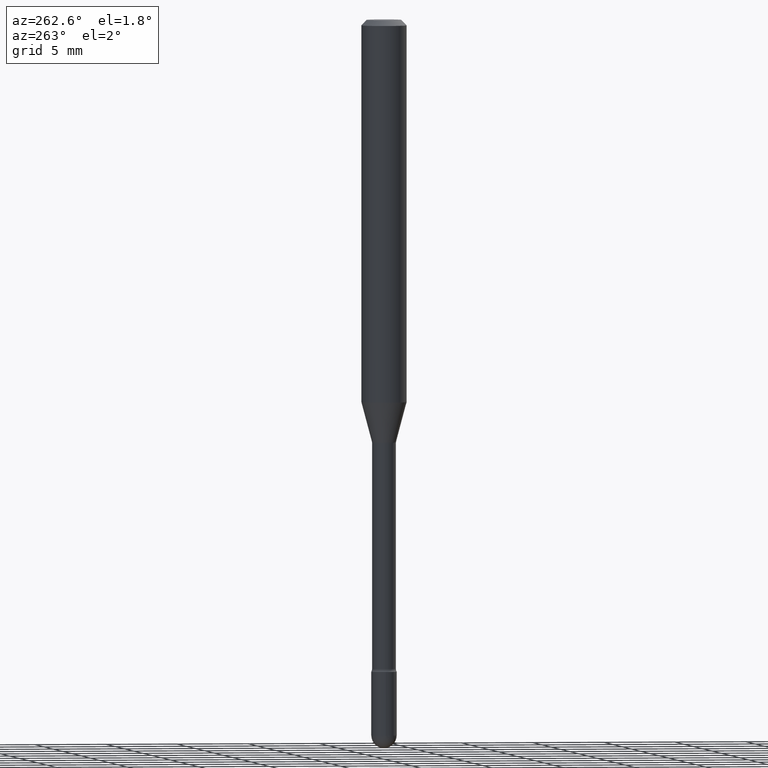
[diagram: clean part render]
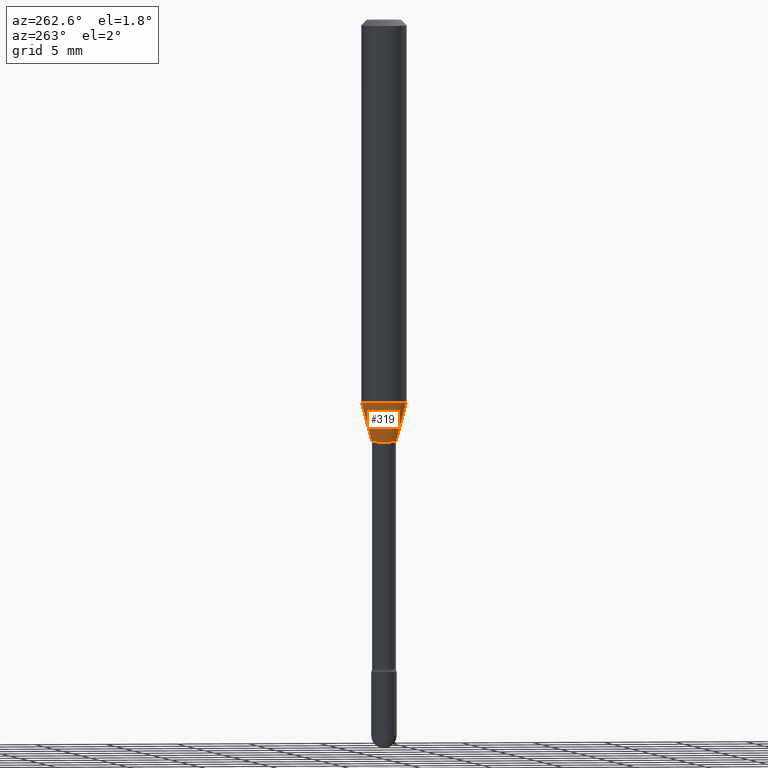
[diagram: same view with one face highlighted and labeled with its STEP entity id]
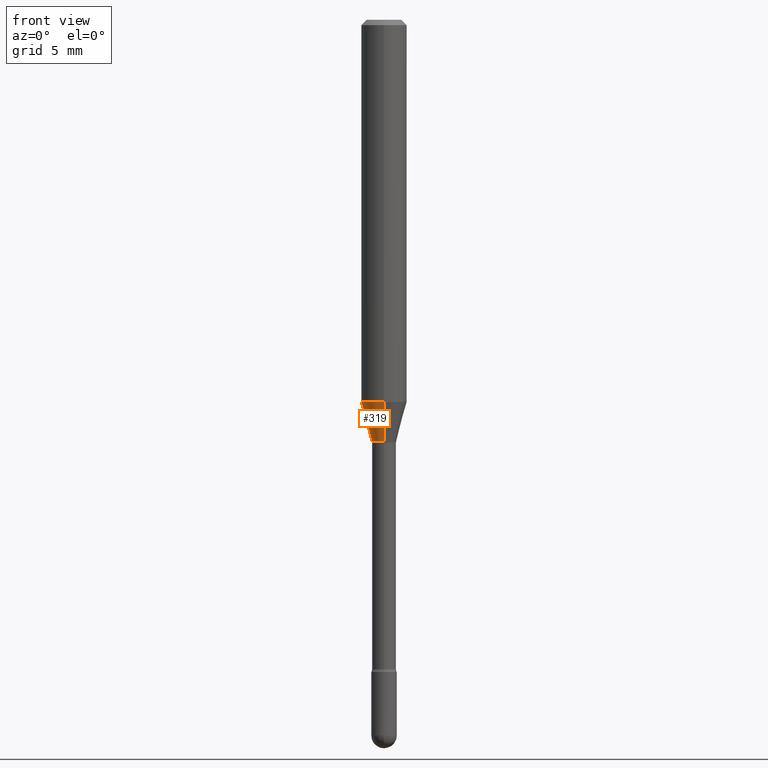
[diagram: same view with one face highlighted and labeled with its STEP entity id]
A machine part, auxiliary view. The second image highlights one B-rep face of the part: STEP entity #319.
A second angle (front view) of the same face is appended — the face is thin or edge-on in the first view.
In plain terms, the highlighted conical surface has half-angle 15 deg.
Its self-contained STEP definition (entity closure, byte-faithful):
#13 = AXIS2_PLACEMENT_3D ( 'NONE', #63, #18, #191 ) ;
#18 = DIRECTION ( 'NONE',  ( -2.445476960663988921E-29, 3.491469661165304910E-15, 1.000000000000000000 ) ) ;
#37 = CARTESIAN_POINT ( 'NONE',  ( 2.832088531438495623E-29, -4.043444834813290827E-15, -1.158092501787272965 ) ) ;
#43 = CONICAL_SURFACE ( 'NONE', #523, 0.03341111260566397706, 0.2617993877991501850 ) ;
#48 = CARTESIAN_POINT ( 'NONE',  ( 3.407447217031445109E-16, 0.03341111260565993862, -1.158092501787273187 ) ) ;
#63 = CARTESIAN_POINT ( 'NONE',  ( 2.566604604098489247E-29, -3.664406678762549915E-15, -1.049531296095961519 ) ) ;
#93 = CARTESIAN_POINT ( 'NONE',  ( 2.374002335562008169E-16, 0.03341111260565993862, -1.158092501787273187 ) ) ;
#101 = CARTESIAN_POINT ( 'NONE',  ( -4.364351673553658835E-16, -0.06250000000000366374, -1.049531296095961297 ) ) ;
#112 = DIRECTION ( 'NONE',  ( -6.982962677686266711E-15, -1.000000000000000000, 4.088232597799138123E-15 ) ) ;
#121 = ORIENTED_EDGE ( 'NONE', *, *, #516, .T. ) ;
#124 = AXIS2_PLACEMENT_3D ( 'NONE', #125, #476, #391 ) ;
#125 = CARTESIAN_POINT ( 'NONE',  ( 2.832088531438495623E-29, -4.043444834813290827E-15, -1.158092501787272965 ) ) ;
#145 = VERTEX_POINT ( 'NONE', #101 ) ;
#153 = ORIENTED_EDGE ( 'NONE', *, *, #189, .F. ) ;
#157 = ORIENTED_EDGE ( 'NONE', *, *, #418, .T. ) ;
#169 = DIRECTION ( 'NONE',  ( 1.839019923739599526E-15, 0.2588190451025248473, 0.9659258262890670910 ) ) ;
#189 = EDGE_CURVE ( 'NONE', #248, #145, #230, .T. ) ;
#191 = DIRECTION ( 'NONE',  ( -6.982962677686265922E-15, -1.000000000000000000, 4.370956789862821150E-15 ) ) ;
#230 = CIRCLE ( 'NONE', #13, 0.06250000000000000000 ) ;
#248 = VERTEX_POINT ( 'NONE', #554 ) ;
#257 = VECTOR ( 'NONE', #169, 39.37007874015748143 ) ;
#260 = CARTESIAN_POINT ( 'NONE',  ( -2.333085523452963922E-16, -0.03341111260566802243, -1.158092501787272965 ) ) ;
#300 = ORIENTED_EDGE ( 'NONE', *, *, #356, .F. ) ;
#319 = ADVANCED_FACE ( 'NONE', ( #429 ), #43, .T. ) ;
#354 = CARTESIAN_POINT ( 'NONE',  ( -2.333085523452963922E-16, -0.03341111260566802243, -1.158092501787272965 ) ) ;
#356 = EDGE_CURVE ( 'NONE', #450, #248, #389, .T. ) ;
#369 = VECTOR ( 'NONE', #435, 39.37007874015749564 ) ;
#370 = DIRECTION ( 'NONE',  ( -2.445476960663988921E-29, 3.491469661165304910E-15, 1.000000000000000000 ) ) ;
#371 = VERTEX_POINT ( 'NONE', #260 ) ;
#389 = LINE ( 'NONE', #93, #257 ) ;
#391 = DIRECTION ( 'NONE',  ( -6.982962677686266711E-15, -1.000000000000000000, 4.088232597799138123E-15 ) ) ;
#409 = EDGE_LOOP ( 'NONE', ( #300, #157, #121, #153 ) ) ;
#418 = EDGE_CURVE ( 'NONE', #450, #371, #445, .T. ) ;
#429 = FACE_OUTER_BOUND ( 'NONE', #409, .T. ) ;
#435 = DIRECTION ( 'NONE',  ( -1.807323732225329350E-15, -0.2588190451025180194, 0.9659258262890689783 ) ) ;
#445 = CIRCLE ( 'NONE', #124, 0.03341111260566397706 ) ;
#450 = VERTEX_POINT ( 'NONE', #48 ) ;
#476 = DIRECTION ( 'NONE',  ( -2.445476960663988921E-29, 3.491469661165304910E-15, 1.000000000000000000 ) ) ;
#516 = EDGE_CURVE ( 'NONE', #371, #145, #558, .T. ) ;
#523 = AXIS2_PLACEMENT_3D ( 'NONE', #37, #370, #112 ) ;
#554 = CARTESIAN_POINT ( 'NONE',  ( 4.440892098500882541E-16, 0.06249999999999633626, -1.049531296095961741 ) ) ;
#558 = LINE ( 'NONE', #354, #369 ) ;